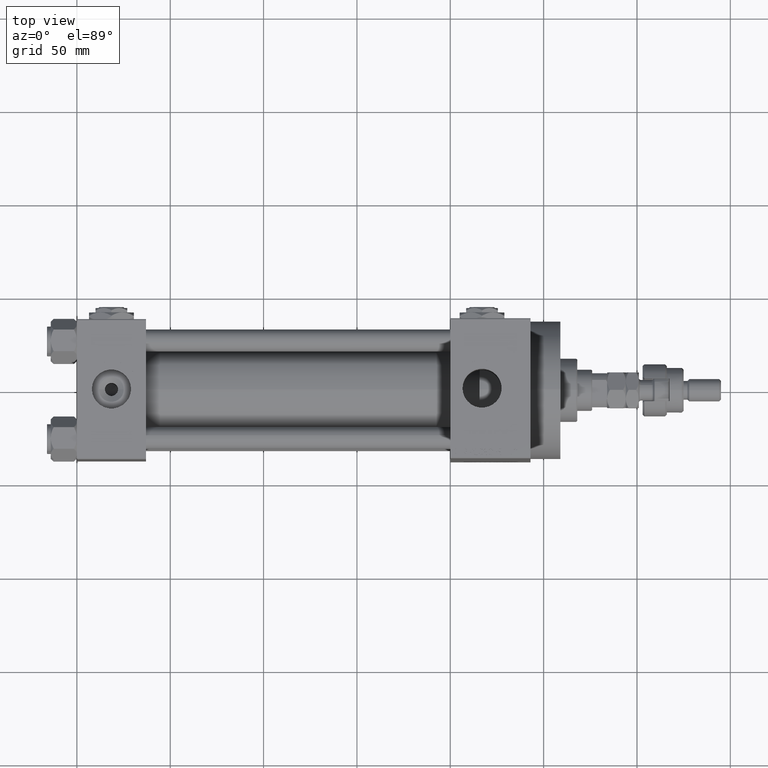
[diagram: clean part render]
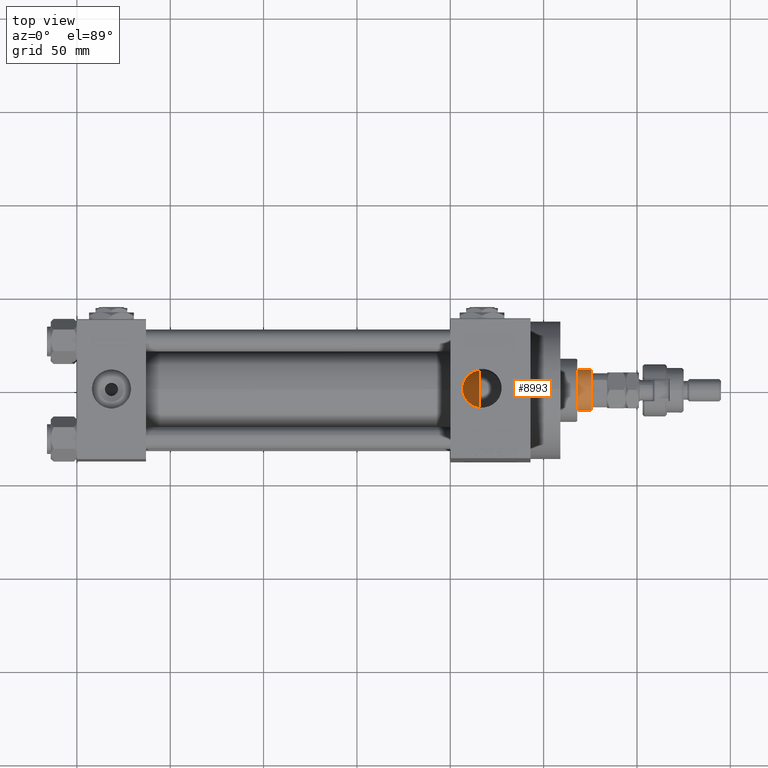
[diagram: same view with one face highlighted and labeled with its STEP entity id]
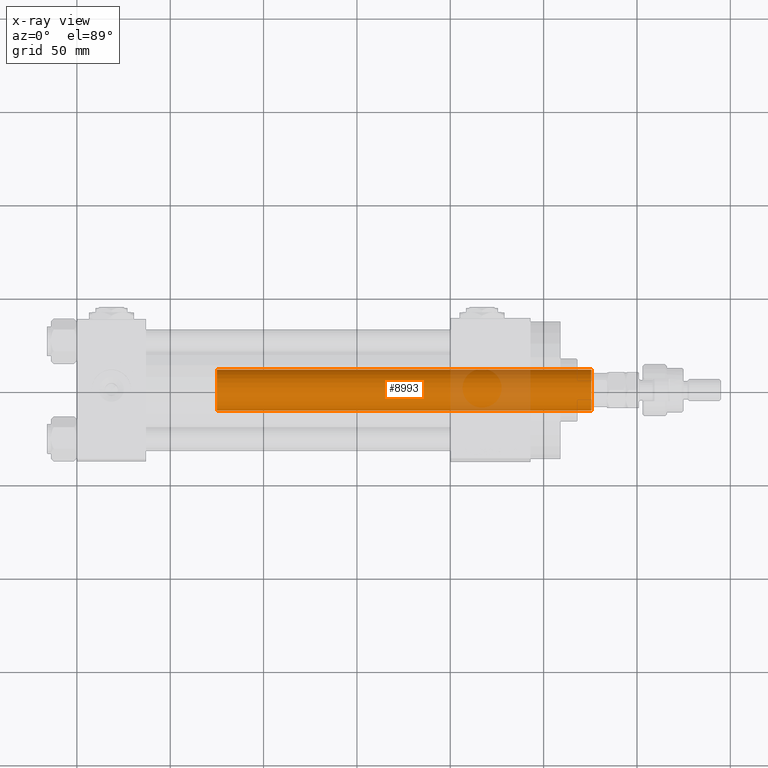
[diagram: x-ray of the same camera — body ghosted, the highlighted face saturated]
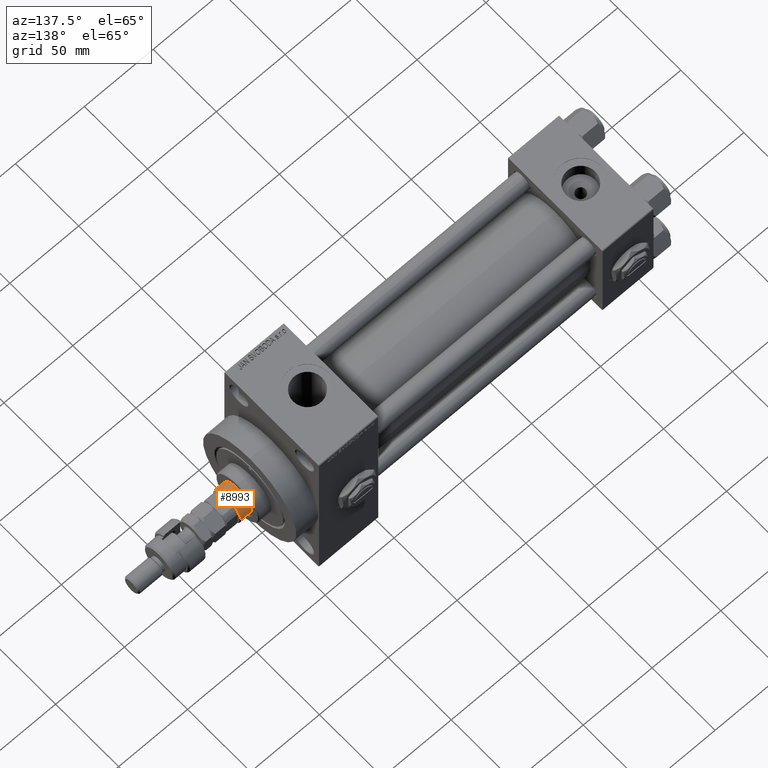
[diagram: same view with one face highlighted and labeled with its STEP entity id]
A machine part, top view. The second image highlights one B-rep face of the part: STEP entity #8993.
The next image is the same camera in x-ray: the body ghosted, the highlighted face saturated — about 14% of this face is hidden behind the body in this view.
A second angle (auxiliary view) of the same face is appended — the face is thin or edge-on in the first view.
In plain terms, the highlighted cylindrical surface (edge-blend (fillet) strip) has radius 11 mm, axis along (-1, 0, 0).
Its self-contained STEP definition (entity closure, byte-faithful):
#236 = ORIENTED_EDGE ( 'NONE', *, *, #29283, .T. ) ;
#1298 = VERTEX_POINT ( 'NONE', #30900 ) ;
#1701 = AXIS2_PLACEMENT_3D ( 'NONE', #4870, #4604, #27929 ) ;
#2434 = DIRECTION ( 'NONE',  ( -0.000000000000000000, -0.000000000000000000, -1.000000000000000000 ) ) ;
#2466 = CARTESIAN_POINT ( 'NONE',  ( 11.00000000000000000, 1.347111479062088405E-15, 38.00000000000000000 ) ) ;
#4604 = DIRECTION ( 'NONE',  ( 0.000000000000000000, 0.000000000000000000, -1.000000000000000000 ) ) ;
#4870 = CARTESIAN_POINT ( 'NONE',  ( 0.000000000000000000, 0.000000000000000000, 238.5000000000000853 ) ) ;
#8825 = CARTESIAN_POINT ( 'NONE',  ( -11.00000000000000000, 0.000000000000000000, 239.0000000000000284 ) ) ;
#8993 = ADVANCED_FACE ( 'NONE', ( #29983 ), #10616, .T. ) ;
#10616 = CYLINDRICAL_SURFACE ( 'NONE', #35694, 11.00000000000000000 ) ;
#12257 = CIRCLE ( 'NONE', #35985, 11.00000000000000000 ) ;
#13273 = VECTOR ( 'NONE', #44570, 1000.000000000000000 ) ;
#17468 = EDGE_CURVE ( 'NONE', #31165, #18722, #34511, .T. ) ;
#18722 = VERTEX_POINT ( 'NONE', #2466 ) ;
#19440 = CIRCLE ( 'NONE', #1701, 11.00000000000000000 ) ;
#22287 = CARTESIAN_POINT ( 'NONE',  ( 11.00000000000000000, 1.347111479062088405E-15, 238.5000000000000853 ) ) ;
#25775 = VECTOR ( 'NONE', #47438, 1000.000000000000000 ) ;
#27275 = EDGE_LOOP ( 'NONE', ( #36444, #51888, #36881, #236 ) ) ;
#27929 = DIRECTION ( 'NONE',  ( 1.000000000000000000, 0.000000000000000000, 0.000000000000000000 ) ) ;
#29283 = EDGE_CURVE ( 'NONE', #42121, #18722, #12257, .T. ) ;
#29983 = FACE_OUTER_BOUND ( 'NONE', #27275, .T. ) ;
#30900 = CARTESIAN_POINT ( 'NONE',  ( -11.00000000000000000, 0.000000000000000000, 238.5000000000000853 ) ) ;
#31165 = VERTEX_POINT ( 'NONE', #22287 ) ;
#34511 = LINE ( 'NONE', #35029, #25775 ) ;
#34751 = DIRECTION ( 'NONE',  ( -1.000000000000000000, 0.000000000000000000, 0.000000000000000000 ) ) ;
#35029 = CARTESIAN_POINT ( 'NONE',  ( 11.00000000000000000, 1.347111479062088405E-15, 239.0000000000000284 ) ) ;
#35694 = AXIS2_PLACEMENT_3D ( 'NONE', #39229, #2434, #34751 ) ;
#35985 = AXIS2_PLACEMENT_3D ( 'NONE', #49747, #45790, #42361 ) ;
#36444 = ORIENTED_EDGE ( 'NONE', *, *, #17468, .F. ) ;
#36694 = EDGE_CURVE ( 'NONE', #1298, #42121, #49317, .T. ) ;
#36881 = ORIENTED_EDGE ( 'NONE', *, *, #36694, .T. ) ;
#39229 = CARTESIAN_POINT ( 'NONE',  ( 0.000000000000000000, 0.000000000000000000, 239.0000000000000284 ) ) ;
#39785 = CARTESIAN_POINT ( 'NONE',  ( -11.00000000000000000, 0.000000000000000000, 38.00000000000000000 ) ) ;
#42121 = VERTEX_POINT ( 'NONE', #39785 ) ;
#42361 = DIRECTION ( 'NONE',  ( 1.000000000000000000, 0.000000000000000000, 0.000000000000000000 ) ) ;
#42721 = EDGE_CURVE ( 'NONE', #31165, #1298, #19440, .T. ) ;
#44570 = DIRECTION ( 'NONE',  ( -0.000000000000000000, -0.000000000000000000, -1.000000000000000000 ) ) ;
#45790 = DIRECTION ( 'NONE',  ( 0.000000000000000000, 0.000000000000000000, 1.000000000000000000 ) ) ;
#47438 = DIRECTION ( 'NONE',  ( -0.000000000000000000, -0.000000000000000000, -1.000000000000000000 ) ) ;
#49317 = LINE ( 'NONE', #8825, #13273 ) ;
#49747 = CARTESIAN_POINT ( 'NONE',  ( 0.000000000000000000, 0.000000000000000000, 38.00000000000000000 ) ) ;
#51888 = ORIENTED_EDGE ( 'NONE', *, *, #42721, .T. ) ;